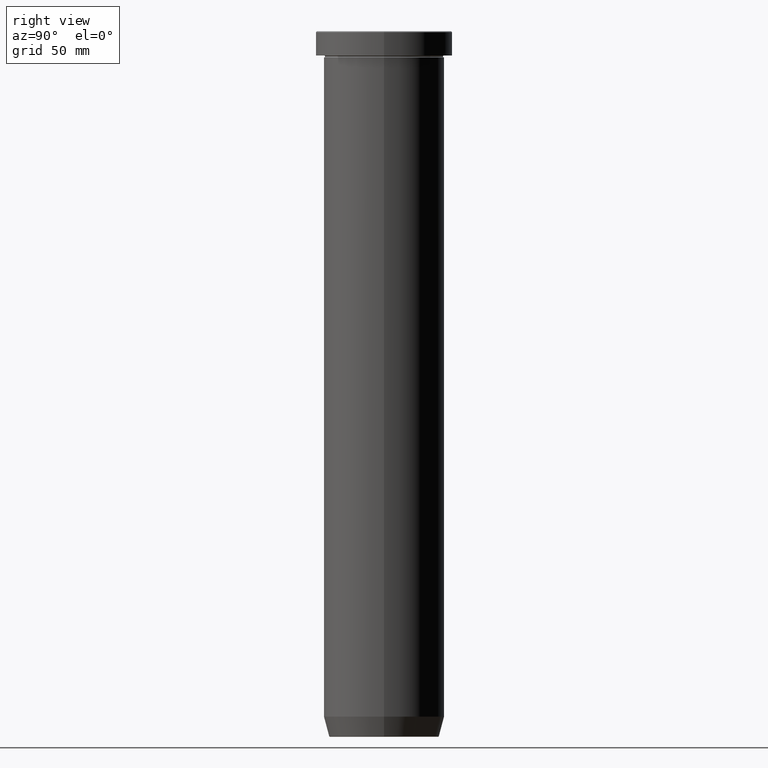
[diagram: clean part render]
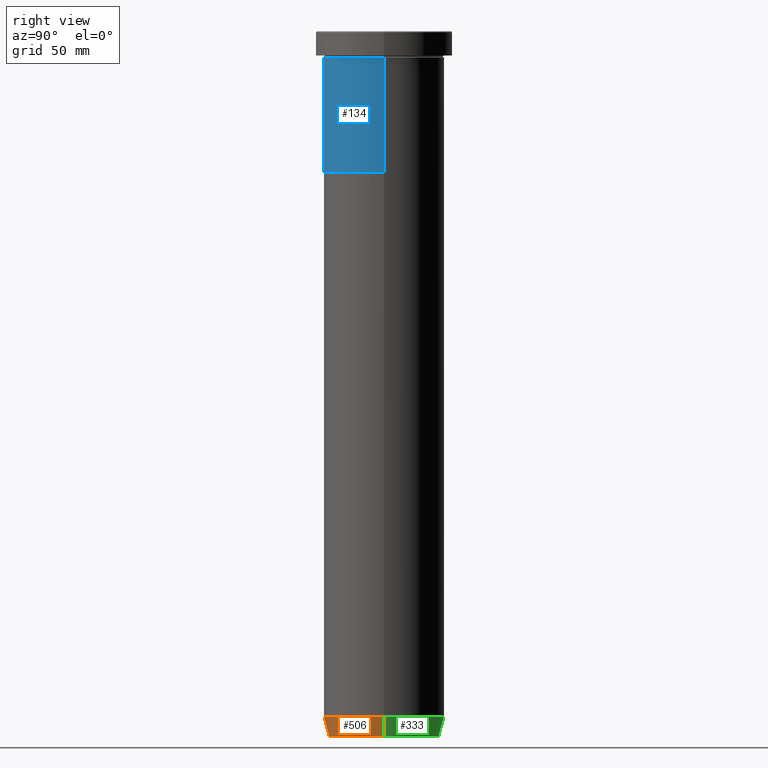
[diagram: same view with three faces highlighted in distinct colors, each labeled with its STEP entity id]
A machine part, right view with three faces highlighted in distinct colors.
Their STEP definitions:

[orange] entity #506 — the highlighted conical surface has half-angle 15 deg.
#15 = AXIS2_PLACEMENT_3D ( 'NONE', #457, #234, #412 ) ;
#59 = ORIENTED_EDGE ( 'NONE', *, *, #415, .F. ) ;
#69 = CIRCLE ( 'NONE', #15, 27.41980749484382684 ) ;
#71 = ORIENTED_EDGE ( 'NONE', *, *, #300, .T. ) ;
#114 = FACE_OUTER_BOUND ( 'NONE', #379, .T. ) ;
#117 = VERTEX_POINT ( 'NONE', #364 ) ;
#118 = DIRECTION ( 'NONE',  ( 1.000000000000000000, 0.000000000000000000, 0.000000000000000000 ) ) ;
#125 = CARTESIAN_POINT ( 'NONE',  ( 0.000000000000000000, 0.000000000000000000, -340.0000000000000000 ) ) ;
#130 = DIRECTION ( 'NONE',  ( -0.2588190451025211836, 3.169619151431770488E-17, 0.9659258262890680902 ) ) ;
#139 = ORIENTED_EDGE ( 'NONE', *, *, #363, .T. ) ;
#140 = LINE ( 'NONE', #544, #398 ) ;
#145 = VERTEX_POINT ( 'NONE', #394 ) ;
#169 = DIRECTION ( 'NONE',  ( -0.000000000000000000, -0.000000000000000000, 1.000000000000000000 ) ) ;
#174 = EDGE_CURVE ( 'NONE', #117, #334, #254, .T. ) ;
#185 = VECTOR ( 'NONE', #403, 1000.000000000000114 ) ;
#234 = DIRECTION ( 'NONE',  ( -0.000000000000000000, -0.000000000000000000, 1.000000000000000000 ) ) ;
#254 = CIRCLE ( 'NONE', #443, 30.00000000000000000 ) ;
#300 = EDGE_CURVE ( 'NONE', #503, #334, #459, .T. ) ;
#306 = CARTESIAN_POINT ( 'NONE',  ( 0.000000000000000000, 0.000000000000000000, -350.0000000000000568 ) ) ;
#313 = CARTESIAN_POINT ( 'NONE',  ( 27.32050807568876394, 0.000000000000000000, -350.0000000000000568 ) ) ;
#322 = CONICAL_SURFACE ( 'NONE', #432, 27.32050807568876394, 0.2617993877991499074 ) ;
#334 = VERTEX_POINT ( 'NONE', #497 ) ;
#342 = DIRECTION ( 'NONE',  ( -0.000000000000000000, -0.000000000000000000, 1.000000000000000000 ) ) ;
#348 = CARTESIAN_POINT ( 'NONE',  ( 27.41980749484383040, 0.000000000000000000, -349.6294095225512706 ) ) ;
#363 = EDGE_CURVE ( 'NONE', #145, #503, #69, .T. ) ;
#364 = CARTESIAN_POINT ( 'NONE',  ( -30.00000000000000000, 3.673940397442059178E-15, -340.0000000000000000 ) ) ;
#379 = EDGE_LOOP ( 'NONE', ( #59, #139, #71, #433 ) ) ;
#394 = CARTESIAN_POINT ( 'NONE',  ( -27.41980749484383040, 3.515949172810884975E-15, -349.6294095225512706 ) ) ;
#398 = VECTOR ( 'NONE', #130, 1000.000000000000114 ) ;
#403 = DIRECTION ( 'NONE',  ( 0.2588190451025211836, 0.000000000000000000, 0.9659258262890680902 ) ) ;
#412 = DIRECTION ( 'NONE',  ( -1.000000000000000000, 0.000000000000000000, 0.000000000000000000 ) ) ;
#415 = EDGE_CURVE ( 'NONE', #145, #117, #140, .T. ) ;
#432 = AXIS2_PLACEMENT_3D ( 'NONE', #306, #169, #118 ) ;
#433 = ORIENTED_EDGE ( 'NONE', *, *, #174, .F. ) ;
#443 = AXIS2_PLACEMENT_3D ( 'NONE', #125, #342, #538 ) ;
#457 = CARTESIAN_POINT ( 'NONE',  ( 0.000000000000000000, 0.000000000000000000, -349.6294095225512706 ) ) ;
#459 = LINE ( 'NONE', #313, #185 ) ;
#497 = CARTESIAN_POINT ( 'NONE',  ( 30.00000000000000000, 0.000000000000000000, -340.0000000000000000 ) ) ;
#503 = VERTEX_POINT ( 'NONE', #348 ) ;
#506 = ADVANCED_FACE ( 'NONE', ( #114 ), #322, .T. ) ;
#538 = DIRECTION ( 'NONE',  ( 1.000000000000000000, 0.000000000000000000, 0.000000000000000000 ) ) ;
#544 = CARTESIAN_POINT ( 'NONE',  ( -27.32050807568876394, 3.345797276597165804E-15, -350.0000000000000568 ) ) ;

[blue] entity #134 — the highlighted cylindrical surface (partial cylindrical patch) has radius 30 mm, axis along (-0, -0, 1).
#24 = CARTESIAN_POINT ( 'NONE',  ( -30.00000000000000711, 3.673940397442059967E-15, -70.00000000000000000 ) ) ;
#37 = CIRCLE ( 'NONE', #199, 30.00000000000000000 ) ;
#63 = EDGE_LOOP ( 'NONE', ( #531, #420, #241, #428 ) ) ;
#115 = FACE_OUTER_BOUND ( 'NONE', #63, .T. ) ;
#134 = ADVANCED_FACE ( 'NONE', ( #115 ), #383, .T. ) ;
#168 = VERTEX_POINT ( 'NONE', #170 ) ;
#170 = CARTESIAN_POINT ( 'NONE',  ( 30.00000000000000355, 0.000000000000000000, -70.00000000000000000 ) ) ;
#175 = CARTESIAN_POINT ( 'NONE',  ( -30.00000000000000000, 3.673940397442059178E-15, 0.000000000000000000 ) ) ;
#199 = AXIS2_PLACEMENT_3D ( 'NONE', #590, #207, #485 ) ;
#202 = VERTEX_POINT ( 'NONE', #490 ) ;
#206 = VECTOR ( 'NONE', #374, 1000.000000000000000 ) ;
#207 = DIRECTION ( 'NONE',  ( -0.000000000000000000, -0.000000000000000000, 1.000000000000000000 ) ) ;
#208 = CARTESIAN_POINT ( 'NONE',  ( 0.000000000000000000, 0.000000000000000000, -70.00000000000000000 ) ) ;
#212 = CARTESIAN_POINT ( 'NONE',  ( 0.000000000000000000, 0.000000000000000000, 0.000000000000000000 ) ) ;
#232 = VECTOR ( 'NONE', #519, 1000.000000000000000 ) ;
#241 = ORIENTED_EDGE ( 'NONE', *, *, #427, .T. ) ;
#243 = CARTESIAN_POINT ( 'NONE',  ( 30.00000000000000000, 0.000000000000000000, 0.000000000000000000 ) ) ;
#249 = LINE ( 'NONE', #243, #206 ) ;
#251 = EDGE_CURVE ( 'NONE', #570, #168, #566, .T. ) ;
#302 = AXIS2_PLACEMENT_3D ( 'NONE', #208, #392, #529 ) ;
#321 = AXIS2_PLACEMENT_3D ( 'NONE', #212, #581, #439 ) ;
#339 = VERTEX_POINT ( 'NONE', #354 ) ;
#354 = CARTESIAN_POINT ( 'NONE',  ( 30.00000000000000000, 0.000000000000000000, -12.99999999999999822 ) ) ;
#374 = DIRECTION ( 'NONE',  ( -0.000000000000000000, -0.000000000000000000, 1.000000000000000000 ) ) ;
#383 = CYLINDRICAL_SURFACE ( 'NONE', #321, 30.00000000000000000 ) ;
#392 = DIRECTION ( 'NONE',  ( -0.000000000000000000, -0.000000000000000000, 1.000000000000000000 ) ) ;
#399 = LINE ( 'NONE', #175, #232 ) ;
#420 = ORIENTED_EDGE ( 'NONE', *, *, #251, .T. ) ;
#427 = EDGE_CURVE ( 'NONE', #168, #339, #249, .T. ) ;
#428 = ORIENTED_EDGE ( 'NONE', *, *, #543, .F. ) ;
#439 = DIRECTION ( 'NONE',  ( 1.000000000000000000, 0.000000000000000000, 0.000000000000000000 ) ) ;
#485 = DIRECTION ( 'NONE',  ( 1.000000000000000000, 0.000000000000000000, 0.000000000000000000 ) ) ;
#490 = CARTESIAN_POINT ( 'NONE',  ( -30.00000000000000000, 3.673940397442059178E-15, -12.99999999999999822 ) ) ;
#519 = DIRECTION ( 'NONE',  ( -0.000000000000000000, -0.000000000000000000, 1.000000000000000000 ) ) ;
#529 = DIRECTION ( 'NONE',  ( 1.000000000000000000, 0.000000000000000000, 0.000000000000000000 ) ) ;
#531 = ORIENTED_EDGE ( 'NONE', *, *, #565, .F. ) ;
#543 = EDGE_CURVE ( 'NONE', #202, #339, #37, .T. ) ;
#565 = EDGE_CURVE ( 'NONE', #570, #202, #399, .T. ) ;
#566 = CIRCLE ( 'NONE', #302, 30.00000000000000355 ) ;
#570 = VERTEX_POINT ( 'NONE', #24 ) ;
#581 = DIRECTION ( 'NONE',  ( -0.000000000000000000, -0.000000000000000000, 1.000000000000000000 ) ) ;
#590 = CARTESIAN_POINT ( 'NONE',  ( 0.000000000000000000, 0.000000000000000000, -12.99999999999999822 ) ) ;

[green] entity #333 — the highlighted conical surface has half-angle 15 deg.
#34 = DIRECTION ( 'NONE',  ( -1.000000000000000000, 0.000000000000000000, 0.000000000000000000 ) ) ;
#73 = DIRECTION ( 'NONE',  ( -0.000000000000000000, -0.000000000000000000, 1.000000000000000000 ) ) ;
#101 = AXIS2_PLACEMENT_3D ( 'NONE', #320, #558, #504 ) ;
#117 = VERTEX_POINT ( 'NONE', #364 ) ;
#130 = DIRECTION ( 'NONE',  ( -0.2588190451025211836, 3.169619151431770488E-17, 0.9659258262890680902 ) ) ;
#137 = CARTESIAN_POINT ( 'NONE',  ( 0.000000000000000000, 0.000000000000000000, -340.0000000000000000 ) ) ;
#140 = LINE ( 'NONE', #544, #398 ) ;
#145 = VERTEX_POINT ( 'NONE', #394 ) ;
#155 = CIRCLE ( 'NONE', #577, 30.00000000000000000 ) ;
#179 = FACE_OUTER_BOUND ( 'NONE', #370, .T. ) ;
#185 = VECTOR ( 'NONE', #403, 1000.000000000000114 ) ;
#261 = CARTESIAN_POINT ( 'NONE',  ( 0.000000000000000000, 0.000000000000000000, -349.6294095225512706 ) ) ;
#264 = AXIS2_PLACEMENT_3D ( 'NONE', #261, #73, #34 ) ;
#270 = ORIENTED_EDGE ( 'NONE', *, *, #352, .F. ) ;
#300 = EDGE_CURVE ( 'NONE', #503, #334, #459, .T. ) ;
#313 = CARTESIAN_POINT ( 'NONE',  ( 27.32050807568876394, 0.000000000000000000, -350.0000000000000568 ) ) ;
#320 = CARTESIAN_POINT ( 'NONE',  ( 0.000000000000000000, 0.000000000000000000, -350.0000000000000568 ) ) ;
#328 = ORIENTED_EDGE ( 'NONE', *, *, #300, .F. ) ;
#333 = ADVANCED_FACE ( 'NONE', ( #179 ), #358, .T. ) ;
#334 = VERTEX_POINT ( 'NONE', #497 ) ;
#338 = ORIENTED_EDGE ( 'NONE', *, *, #555, .T. ) ;
#348 = CARTESIAN_POINT ( 'NONE',  ( 27.41980749484383040, 0.000000000000000000, -349.6294095225512706 ) ) ;
#352 = EDGE_CURVE ( 'NONE', #334, #117, #155, .T. ) ;
#358 = CONICAL_SURFACE ( 'NONE', #101, 27.32050807568876394, 0.2617993877991499074 ) ;
#364 = CARTESIAN_POINT ( 'NONE',  ( -30.00000000000000000, 3.673940397442059178E-15, -340.0000000000000000 ) ) ;
#370 = EDGE_LOOP ( 'NONE', ( #338, #385, #270, #328 ) ) ;
#385 = ORIENTED_EDGE ( 'NONE', *, *, #415, .T. ) ;
#394 = CARTESIAN_POINT ( 'NONE',  ( -27.41980749484383040, 3.515949172810884975E-15, -349.6294095225512706 ) ) ;
#398 = VECTOR ( 'NONE', #130, 1000.000000000000114 ) ;
#403 = DIRECTION ( 'NONE',  ( 0.2588190451025211836, 0.000000000000000000, 0.9659258262890680902 ) ) ;
#415 = EDGE_CURVE ( 'NONE', #145, #117, #140, .T. ) ;
#459 = LINE ( 'NONE', #313, #185 ) ;
#497 = CARTESIAN_POINT ( 'NONE',  ( 30.00000000000000000, 0.000000000000000000, -340.0000000000000000 ) ) ;
#503 = VERTEX_POINT ( 'NONE', #348 ) ;
#504 = DIRECTION ( 'NONE',  ( 1.000000000000000000, 0.000000000000000000, 0.000000000000000000 ) ) ;
#507 = DIRECTION ( 'NONE',  ( 1.000000000000000000, 0.000000000000000000, 0.000000000000000000 ) ) ;
#535 = CIRCLE ( 'NONE', #264, 27.41980749484382684 ) ;
#544 = CARTESIAN_POINT ( 'NONE',  ( -27.32050807568876394, 3.345797276597165804E-15, -350.0000000000000568 ) ) ;
#555 = EDGE_CURVE ( 'NONE', #503, #145, #535, .T. ) ;
#558 = DIRECTION ( 'NONE',  ( -0.000000000000000000, -0.000000000000000000, 1.000000000000000000 ) ) ;
#577 = AXIS2_PLACEMENT_3D ( 'NONE', #137, #599, #507 ) ;
#599 = DIRECTION ( 'NONE',  ( -0.000000000000000000, -0.000000000000000000, 1.000000000000000000 ) ) ;